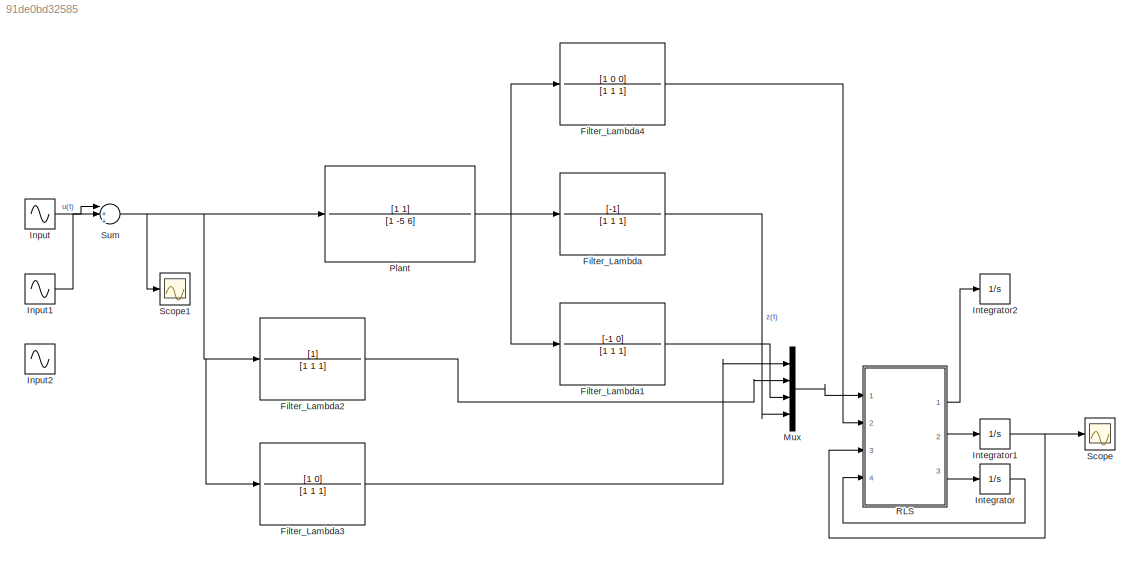
MODEL slx_91de0bd32585
KIND model
CONFIG AbsTol = auto
CONFIG FixedStep = auto
CONFIG MaxStep = auto
CONFIG MinStep = auto
CONFIG RelTol = 1e-3
CONFIG SampleTimeConstraint = Unconstrained
CONFIG Solver = VariableStepAuto
CONFIG SolverMode = Auto
CONFIG SolverName = VariableStepAuto
CONFIG StartTime = 0.0
CONFIG StopTime = 4
BLOCK [TransferFcn] Filter_Lambda
  Denominator = [1 1 1]
  Numerator = [-1]
BLOCK [TransferFcn] Filter_Lambda1
  Denominator = [1 1 1]
  Numerator = [-1 0]
BLOCK [TransferFcn] Filter_Lambda2
  Denominator = [1 1 1]
BLOCK [TransferFcn] Filter_Lambda3
  Denominator = [1 1 1]
  Numerator = [1 0]
BLOCK [TransferFcn] Filter_Lambda4
  Denominator = [1 1 1]
  Numerator = [1 0 0]
BLOCK [Sin] Input
  Amplitude = 4
  Bias = 2
  Ports = [0, 1]
  SampleTime = 0
BLOCK [Sin] Input1
  Amplitude = 4
  Frequency = 2
  Ports = [0, 1]
  SampleTime = 0
BLOCK [Sin] Input2
  Bias = -2
  Frequency = 12.5
  Ports = [0, 1]
  SampleTime = 0
BLOCK [Integrator] Integrator
  InitialCondition = P_init
  Ports = [1, 1]
BLOCK [Integrator] Integrator1
  InitialCondition = theta_init
  Ports = [1, 1]
BLOCK [Integrator] Integrator2
  InitialCondition = P_init
  Ports = [1, 1]
BLOCK [Mux] Mux
  DisplayOption = bar
  Ports = [4, 1]
BLOCK [TransferFcn] Plant
  Denominator = [1 -5 6]
  Numerator = [1 1]
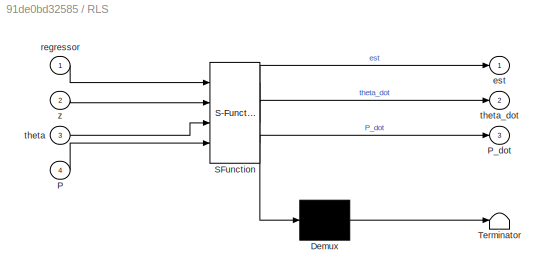
BLOCK [SubSystem] RLS
  ErrorFcn = Stateflow.Translate.translate
  PermitHierarchicalResolution = ExplicitOnly
  Ports = [4, 3]
  RequestExecContextInheritance = off
  SFBlockType = MATLAB Function
  TreatAsAtomicUnit = on
  Variant = off
BLOCK [Demux] RLS/ Demux 
  Outputs = 1
  Ports = [1, 1]
BLOCK [S-Function] RLS/ SFunction 
  EnableBusSupport = on
  FunctionName = sf_sfun
  PortCounts = [4 4]
  Ports = [4, 4]
  SFunctionDeploymentMode = off
  Tag = Stateflow S-Function simulink_upp2 2
BLOCK [Terminator] RLS/ Terminator 
BLOCK [Inport] RLS/P
  IconDisplay = Port number
  Port = 4
BLOCK [Outport] RLS/P_dot
  IconDisplay = Port number
  Port = 3
BLOCK [Outport] RLS/est
  IconDisplay = Port number
BLOCK [Inport] RLS/regressor
  IconDisplay = Port number
BLOCK [Inport] RLS/theta
  IconDisplay = Port number
  Port = 3
BLOCK [Outport] RLS/theta_dot
  IconDisplay = Port number
  Port = 2
BLOCK [Inport] RLS/z
  IconDisplay = Port number
  Port = 2
BLOCK [Scope] Scope
  Ports = [1]
  ScopeSpecificationString = Simulink.scopes.TimeScopeBlockCfg('CurrentConfiguration', extmgr.ConfigurationSet(extmgr.Configuration('Core','General UI',true),extmgr.Configuration('Core','Source UI',true),extmgr.Configuration('Sources','WiredSimulink',true),extmgr.Configuration('Visuals','Time Domain',true,'SerializedDisplays',{struct('MinYLimReal','-6.3742','MaxYLimReal','7.3731','YLabelReal','','MinYLimMag','0.00000','MaxYLi...<+1373ch>
BLOCK [Scope] Scope1
  Ports = [1]
  ScopeSpecificationString = Simulink.scopes.TimeScopeBlockCfg('CurrentConfiguration', extmgr.ConfigurationSet(extmgr.Configuration('Core','General UI',true),extmgr.Configuration('Core','Source UI',true),extmgr.Configuration('Sources','WiredSimulink',true,'DataLoggingVariableName','ScopeData1'),extmgr.Configuration('Visuals','Time Domain',true,'SerializedDisplays',{struct('MinYLimReal','-0.539','MaxYLimReal','10.10323','YLabe...<+1360ch>
BLOCK [Sum] Sum
  IconShape = round
  InputSameDT = off
  Inputs = |+++
  OutDataTypeStr = Inherit: Inherit via internal rule
  Ports = [3, 1]
  SaturateOnIntegerOverflow = off
LINE Filter_Lambda1:1 -> Mux:3
LINE Filter_Lambda2:1 -> Mux:2
LINE Filter_Lambda3:1 -> Mux:1
LINE Filter_Lambda4:1 -> RLS:2
LINE Filter_Lambda:1 -> Mux:4
LINE Input1:1 -> Sum:2
LINE Input:1 -> Sum:1
NET Integrator1:1 -> RLS:3, Scope:1
LINE Integrator:1 -> RLS:4
LINE Mux:1 -> RLS:1
NET Plant:1 -> Filter_Lambda1:1, Filter_Lambda4:1, Filter_Lambda:1
LINE RLS:1 -> Integrator2:1
LINE RLS:2 -> Integrator1:1
LINE RLS:3 -> Integrator:1
NET Sum:1 -> Filter_Lambda2:1, Filter_Lambda3:1, Plant:1, Scope1:1
note: NET lines group one-source signal fan-out (src -> all destinations, sorted); 1:1 wires keep LINE
CHART RLS states=1 transitions=1
  STATE_LABEL 'eML_blk_kernel()'
  STATE_LABEL "SCRIPT:\nfunction [est,theta_dot,P_dot] = fcn(regressor,z,theta,P)\n%#codegen\n\nepsilon = z - theta'*regressor;\n\ntheta_dot = P*epsilon*regressor;\nP_dot = -P*(regressor)*(regressor')*P;\n\nest = 1/2*(z-theta'*regressor)^2;"
